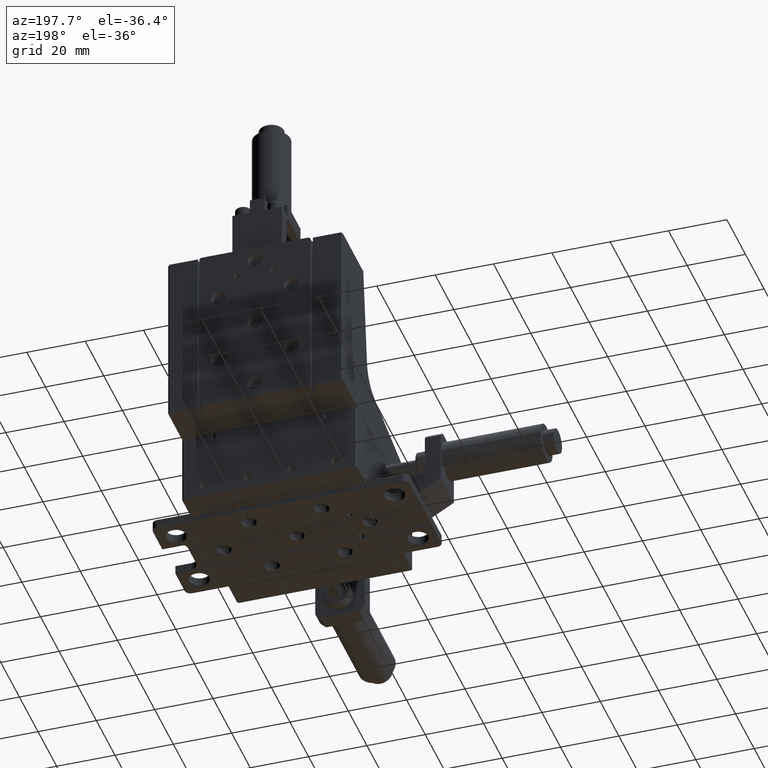
[diagram: clean part render]
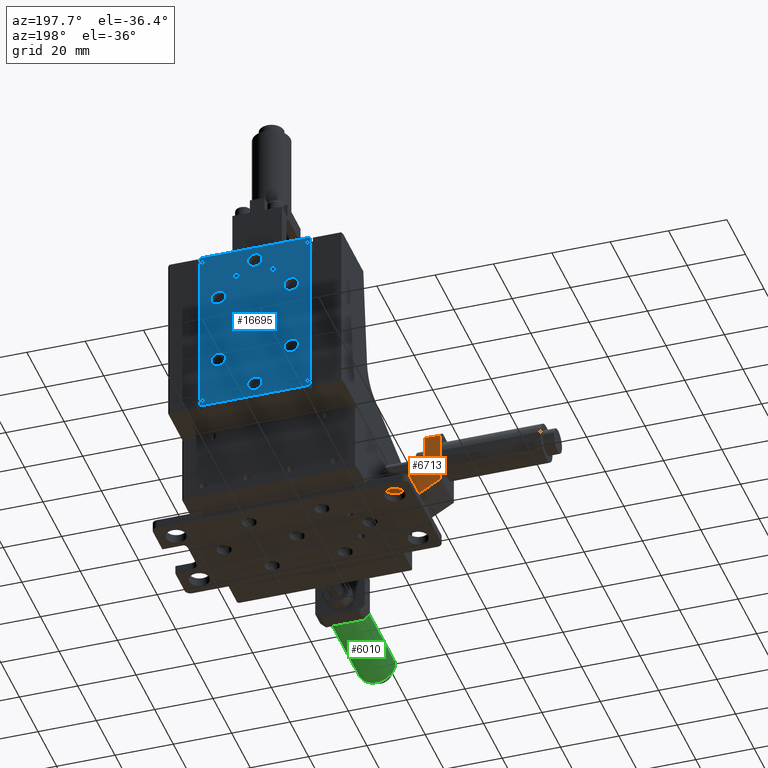
[diagram: same view with three faces highlighted in distinct colors, each labeled with its STEP entity id]
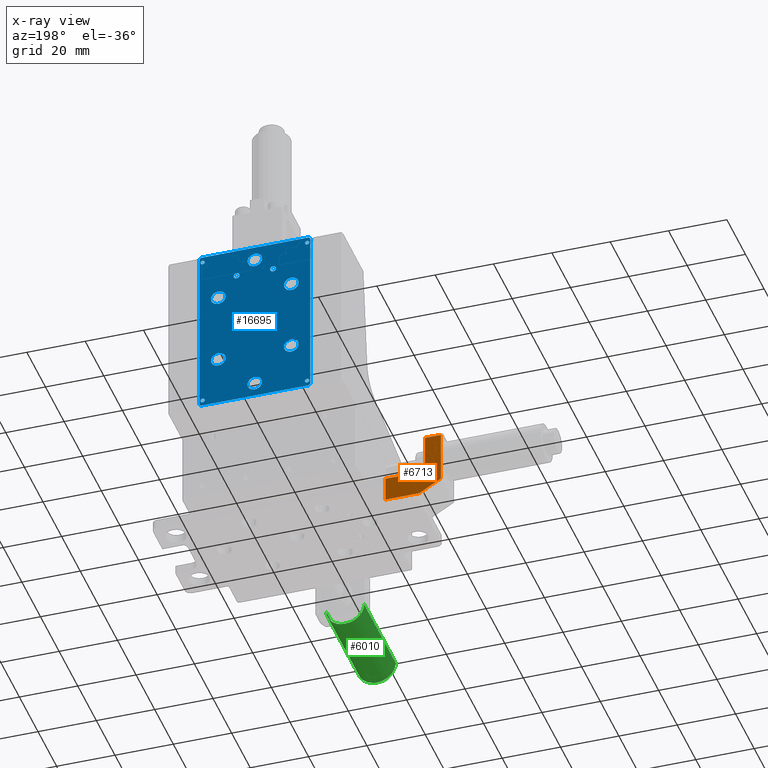
[diagram: x-ray of the same camera — body ghosted, the three highlighted faces saturated]
A machine part, auxiliary view with three faces highlighted in distinct colors.
The next image is the same camera in x-ray (body ghosted, the three faces saturated) — at least one of them is partly hidden behind the body in this view.
Their STEP definitions:

[orange] entity #6713 — the highlighted planar face has unit normal (0, -1, 0).
#38 = EDGE_LOOP ( 'NONE', ( #35945, #15120, #5681, #12062, #9176, #18007, #7366 ) ) ;
#511 = LINE ( 'NONE', #4927, #14455 ) ;
#2463 = LINE ( 'NONE', #17001, #9872 ) ;
#2578 = VERTEX_POINT ( 'NONE', #18215 ) ;
#4925 = VECTOR ( 'NONE', #14638, 1000.000000000000000 ) ;
#4927 = CARTESIAN_POINT ( 'NONE',  ( -63.20230440000000300, -61.38251310800000500, 14.03634959450000100 ) ) ;
#5125 = EDGE_CURVE ( 'NONE', #10601, #7354, #25595, .T. ) ;
#5681 = ORIENTED_EDGE ( 'NONE', *, *, #35690, .F. ) ;
#6713 = ADVANCED_FACE ( 'NONE', ( #32110 ), #34765, .F. ) ;
#7099 = VERTEX_POINT ( 'NONE', #22460 ) ;
#7354 = VERTEX_POINT ( 'NONE', #13020 ) ;
#7366 = ORIENTED_EDGE ( 'NONE', *, *, #27676, .T. ) ;
#7528 = CARTESIAN_POINT ( 'NONE',  ( -57.70230440000000300, -61.38251310800000500, 21.87128608500000500 ) ) ;
#8152 = VECTOR ( 'NONE', #15590, 1000.000000000000000 ) ;
#8428 = EDGE_CURVE ( 'NONE', #24506, #34978, #12341, .T. ) ;
#9176 = ORIENTED_EDGE ( 'NONE', *, *, #12542, .F. ) ;
#9872 = VECTOR ( 'NONE', #33591, 1000.000000000000000 ) ;
#9947 = DIRECTION ( 'NONE',  ( 0.0000000000000000000, -1.000000000000000000, 0.0000000000000000000 ) ) ;
#10601 = VERTEX_POINT ( 'NONE', #7528 ) ;
#10674 = DIRECTION ( 'NONE',  ( -0.0000000000000000000, -0.0000000000000000000, 1.000000000000000000 ) ) ;
#10907 = VECTOR ( 'NONE', #21947, 1000.000000000000000 ) ;
#11858 = CARTESIAN_POINT ( 'NONE',  ( -53.70230440000000300, -61.38251310800000500, -0.1287139150000000100 ) ) ;
#12062 = ORIENTED_EDGE ( 'NONE', *, *, #8428, .F. ) ;
#12341 = LINE ( 'NONE', #33658, #33547 ) ;
#12542 = EDGE_CURVE ( 'NONE', #26064, #24506, #34398, .T. ) ;
#13020 = CARTESIAN_POINT ( 'NONE',  ( -57.70230440100000600, -61.38251310800000500, 8.371286077000002400 ) ) ;
#13705 = CARTESIAN_POINT ( 'NONE',  ( -63.20230440000000300, -61.38251310800001200, 4.201413104000001100 ) ) ;
#14455 = VECTOR ( 'NONE', #10674, 1000.000000000000000 ) ;
#14638 = DIRECTION ( 'NONE',  ( 1.000000000000000000, 0.0000000000000000000, 0.0000000000000000000 ) ) ;
#15120 = ORIENTED_EDGE ( 'NONE', *, *, #5125, .T. ) ;
#15518 = LINE ( 'NONE', #34950, #8152 ) ;
#15536 = CARTESIAN_POINT ( 'NONE',  ( -44.20230440000000300, -61.38251310800000500, -0.1287139150000009800 ) ) ;
#15590 = DIRECTION ( 'NONE',  ( 1.000000000000000000, 0.0000000000000000000, 0.0000000000000000000 ) ) ;
#17001 = CARTESIAN_POINT ( 'NONE',  ( -53.70230440000000300, -61.38251310800000500, 8.371286077000002400 ) ) ;
#17070 = DIRECTION ( 'NONE',  ( 0.0000000000000000000, 0.0000000000000000000, 1.000000000000000000 ) ) ;
#18007 = ORIENTED_EDGE ( 'NONE', *, *, #21325, .F. ) ;
#18215 = CARTESIAN_POINT ( 'NONE',  ( -63.20230440000000300, -61.38251310799999800, 21.87128608665520700 ) ) ;
#18602 = EDGE_CURVE ( 'NONE', #2578, #10601, #15518, .T. ) ;
#19041 = CARTESIAN_POINT ( 'NONE',  ( -57.70230440000000300, -61.38251310800000500, 16.12128608500000100 ) ) ;
#19144 = CARTESIAN_POINT ( 'NONE',  ( -44.20230440000000300, -61.38251310800000500, 8.371286081000000900 ) ) ;
#20769 = AXIS2_PLACEMENT_3D ( 'NONE', #26534, #9947, #29316 ) ;
#21325 = EDGE_CURVE ( 'NONE', #7099, #26064, #28986, .T. ) ;
#21947 = DIRECTION ( 'NONE',  ( -0.0000000000000000000, -0.0000000000000000000, -1.000000000000000000 ) ) ;
#22460 = CARTESIAN_POINT ( 'NONE',  ( -63.20230440000000300, -61.38251310800001200, 4.201413104000000200 ) ) ;
#24506 = VERTEX_POINT ( 'NONE', #15536 ) ;
#25595 = LINE ( 'NONE', #19041, #10907 ) ;
#26064 = VERTEX_POINT ( 'NONE', #34788 ) ;
#26534 = CARTESIAN_POINT ( 'NONE',  ( -63.20230440000000300, -61.38251310800000500, -0.1287139150000000100 ) ) ;
#27676 = EDGE_CURVE ( 'NONE', #7099, #2578, #511, .T. ) ;
#28986 = LINE ( 'NONE', #13705, #35495 ) ;
#29316 = DIRECTION ( 'NONE',  ( 1.000000000000000000, 0.0000000000000000000, 0.0000000000000000000 ) ) ;
#32110 = FACE_OUTER_BOUND ( 'NONE', #38, .T. ) ;
#33058 = DIRECTION ( 'NONE',  ( 0.8660254037805482600, 0.0000000000000000000, -0.5000000000067385000 ) ) ;
#33547 = VECTOR ( 'NONE', #17070, 1000.000000000000000 ) ;
#33591 = DIRECTION ( 'NONE',  ( -1.000000000000000000, -0.0000000000000000000, -0.0000000000000000000 ) ) ;
#33658 = CARTESIAN_POINT ( 'NONE',  ( -44.20230440000000300, -61.38251310800000500, 10.87128608500000100 ) ) ;
#34398 = LINE ( 'NONE', #11858, #4925 ) ;
#34765 = PLANE ( 'NONE',  #20769 ) ;
#34788 = CARTESIAN_POINT ( 'NONE',  ( -55.70230440000001700, -61.38251310800001200, -0.1287139149999991800 ) ) ;
#34950 = CARTESIAN_POINT ( 'NONE',  ( -60.45230440000000300, -61.38251310800000500, 21.87128608500000100 ) ) ;
#34978 = VERTEX_POINT ( 'NONE', #19144 ) ;
#35495 = VECTOR ( 'NONE', #33058, 1000.000000000000100 ) ;
#35690 = EDGE_CURVE ( 'NONE', #34978, #7354, #2463, .T. ) ;
#35945 = ORIENTED_EDGE ( 'NONE', *, *, #18602, .T. ) ;

[blue] entity #16695 — the highlighted planar face has unit normal (0, 1, 0).
#102 = DIRECTION ( 'NONE',  ( -1.000000000000000000, 0.0000000000000000000, 0.0000000000000000000 ) ) ;
#352 = DIRECTION ( 'NONE',  ( -1.000000000000000000, 0.0000000000000000000, 0.0000000000000000000 ) ) ;
#587 = DIRECTION ( 'NONE',  ( -1.000000000000000000, 0.0000000000000000000, 0.0000000000000000000 ) ) ;
#635 = ORIENTED_EDGE ( 'NONE', *, *, #4079, .T. ) ;
#636 = VERTEX_POINT ( 'NONE', #7115 ) ;
#665 = CARTESIAN_POINT ( 'NONE',  ( 6.197695599999994100, -22.88251310799999800, 24.37128608500000100 ) ) ;
#983 = CIRCLE ( 'NONE', #22921, 0.7500000000000006700 ) ;
#993 = CARTESIAN_POINT ( 'NONE',  ( -17.95230439999999900, -22.88251310799999800, 72.37128608500000800 ) ) ;
#1023 = AXIS2_PLACEMENT_3D ( 'NONE', #33795, #17213, #587 ) ;
#1150 = AXIS2_PLACEMENT_3D ( 'NONE', #34521, #17990, #1319 ) ;
#1245 = VECTOR ( 'NONE', #1707, 1000.000000000000100 ) ;
#1319 = DIRECTION ( 'NONE',  ( -1.000000000000000000, 0.0000000000000000000, 0.0000000000000000000 ) ) ;
#1325 = DIRECTION ( 'NONE',  ( -1.000000000000000000, 0.0000000000000000000, 0.0000000000000000000 ) ) ;
#1707 = DIRECTION ( 'NONE',  ( -0.7071067811865451300, 0.0000000000000000000, 0.7071067811865500200 ) ) ;
#1806 = FACE_OUTER_BOUND ( 'NONE', #22220, .T. ) ;
#1969 = LINE ( 'NONE', #21453, #8498 ) ;
#2142 = CARTESIAN_POINT ( 'NONE',  ( 7.047695600000000800, -22.88251310799999800, 82.12128608500000800 ) ) ;
#2199 = CIRCLE ( 'NONE', #19658, 0.7500000000000006700 ) ;
#2207 = ORIENTED_EDGE ( 'NONE', *, *, #7438, .T. ) ;
#2215 = VECTOR ( 'NONE', #31932, 1000.000000000000000 ) ;
#2216 = AXIS2_PLACEMENT_3D ( 'NONE', #25015, #8434, #27788 ) ;
#2374 = PLANE ( 'NONE',  #19196 ) ;
#2446 = EDGE_LOOP ( 'NONE', ( #12159, #25652 ) ) ;
#2686 = FACE_BOUND ( 'NONE', #3585, .T. ) ;
#2737 = CARTESIAN_POINT ( 'NONE',  ( -26.70230440000000300, -22.88251310799999800, 39.87128608499998700 ) ) ;
#2858 = AXIS2_PLACEMENT_3D ( 'NONE', #13222, #32601, #15977 ) ;
#2938 = AXIS2_PLACEMENT_3D ( 'NONE', #23314, #6712, #26085 ) ;
#3049 = ORIENTED_EDGE ( 'NONE', *, *, #32402, .T. ) ;
#3089 = CARTESIAN_POINT ( 'NONE',  ( -11.70230440000000100, -22.88251310799999800, 27.37128608500000100 ) ) ;
#3311 = VERTEX_POINT ( 'NONE', #19727 ) ;
#3480 = DIRECTION ( 'NONE',  ( -1.000000000000000000, 0.0000000000000000000, 0.0000000000000000000 ) ) ;
#3585 = EDGE_LOOP ( 'NONE', ( #24442, #12973 ) ) ;
#3596 = FACE_BOUND ( 'NONE', #29648, .T. ) ;
#3691 = LINE ( 'NONE', #10830, #32330 ) ;
#3709 = EDGE_CURVE ( 'NONE', #34390, #7021, #13670, .T. ) ;
#3823 = DIRECTION ( 'NONE',  ( 0.0000000000000000000, 0.0000000000000000000, -1.000000000000000000 ) ) ;
#3901 = VERTEX_POINT ( 'NONE', #4678 ) ;
#4012 = CIRCLE ( 'NONE', #10706, 2.500000000000002200 ) ;
#4079 = EDGE_CURVE ( 'NONE', #5090, #27425, #11881, .T. ) ;
#4244 = EDGE_CURVE ( 'NONE', #20859, #25643, #4012, .T. ) ;
#4249 = DIRECTION ( 'NONE',  ( 6.938893903907221500E-016, -1.000000000000000000, -0.0000000000000000000 ) ) ;
#4678 = CARTESIAN_POINT ( 'NONE',  ( -5.452304400000000100, -22.88251310799999800, 71.34628608500001700 ) ) ;
#5090 = VERTEX_POINT ( 'NONE', #7755 ) ;
#5277 = DIRECTION ( 'NONE',  ( 0.0000000000000000000, 1.000000000000000000, 0.0000000000000000000 ) ) ;
#5295 = FACE_BOUND ( 'NONE', #26986, .T. ) ;
#5320 = DIRECTION ( 'NONE',  ( 6.938893903907222500E-016, -1.000000000000000000, -0.0000000000000000000 ) ) ;
#5562 = AXIS2_PLACEMENT_3D ( 'NONE', #34525, #17998, #1325 ) ;
#5563 = CARTESIAN_POINT ( 'NONE',  ( 0.7976955999999983900, -22.88251310799999800, 39.87128608499998700 ) ) ;
#5716 = CARTESIAN_POINT ( 'NONE',  ( 6.947695599999994100, -22.88251310799999800, 80.37128608500000800 ) ) ;
#5736 = EDGE_LOOP ( 'NONE', ( #2207, #24325 ) ) ;
#5860 = DIRECTION ( 'NONE',  ( -1.000000000000000000, 0.0000000000000000000, 0.0000000000000000000 ) ) ;
#5862 = AXIS2_PLACEMENT_3D ( 'NONE', #20876, #4249, #23641 ) ;
#5863 = CARTESIAN_POINT ( 'NONE',  ( -29.60230440000000800, -22.88251310799999800, 80.37128608500000800 ) ) ;
#6333 = CIRCLE ( 'NONE', #22000, 0.7500000000000006700 ) ;
#6615 = LINE ( 'NONE', #10016, #20518 ) ;
#6693 = EDGE_CURVE ( 'NONE', #17311, #18894, #27122, .T. ) ;
#6712 = DIRECTION ( 'NONE',  ( -2.312964634635740700E-015, 1.000000000000000000, 0.0000000000000000000 ) ) ;
#6937 = ORIENTED_EDGE ( 'NONE', *, *, #16515, .T. ) ;
#7021 = VERTEX_POINT ( 'NONE', #5716 ) ;
#7115 = CARTESIAN_POINT ( 'NONE',  ( -17.95230439999999900, -22.88251310799999800, 73.39628608500001400 ) ) ;
#7240 = DIRECTION ( 'NONE',  ( 0.7071067811865451300, 0.0000000000000000000, 0.7071067811865500200 ) ) ;
#7438 = EDGE_CURVE ( 'NONE', #11333, #26262, #30242, .T. ) ;
#7490 = EDGE_CURVE ( 'NONE', #33479, #34594, #19421, .T. ) ;
#7755 = CARTESIAN_POINT ( 'NONE',  ( -14.20230439999999900, -22.88251310799999800, 27.37128608500000100 ) ) ;
#7847 = EDGE_CURVE ( 'NONE', #3901, #19931, #9819, .T. ) ;
#7868 = CARTESIAN_POINT ( 'NONE',  ( -30.70230439999999900, -22.88251310799999800, 81.87128609000001200 ) ) ;
#8028 = AXIS2_PLACEMENT_3D ( 'NONE', #993, #20421, #3823 ) ;
#8050 = VERTEX_POINT ( 'NONE', #2737 ) ;
#8100 = CARTESIAN_POINT ( 'NONE',  ( -17.95230439999999900, -22.88251310799999800, 71.34628608500001700 ) ) ;
#8192 = EDGE_CURVE ( 'NONE', #26614, #11641, #23197, .T. ) ;
#8351 = EDGE_CURVE ( 'NONE', #32627, #30571, #26632, .T. ) ;
#8390 = DIRECTION ( 'NONE',  ( -1.000000000000000000, 0.0000000000000000000, 0.0000000000000000000 ) ) ;
#8413 = AXIS2_PLACEMENT_3D ( 'NONE', #30521, #13949, #33286 ) ;
#8434 = DIRECTION ( 'NONE',  ( 6.938893903907222500E-016, -1.000000000000000000, -0.0000000000000000000 ) ) ;
#8498 = VECTOR ( 'NONE', #32369, 1000.000000000000000 ) ;
#8675 = DIRECTION ( 'NONE',  ( -1.000000000000000000, 0.0000000000000000000, 0.0000000000000000000 ) ) ;
#8774 = CARTESIAN_POINT ( 'NONE',  ( 7.297695599999999900, -22.88251310799999800, 22.87128608000000100 ) ) ;
#9060 = EDGE_CURVE ( 'NONE', #24479, #30750, #983, .T. ) ;
#9193 = EDGE_CURVE ( 'NONE', #18950, #12892, #27423, .T. ) ;
#9199 = EDGE_LOOP ( 'NONE', ( #13409, #25862 ) ) ;
#9209 = FACE_BOUND ( 'NONE', #9199, .T. ) ;
#9373 = VERTEX_POINT ( 'NONE', #12918 ) ;
#9819 = CIRCLE ( 'NONE', #25184, 1.024999999999998100 ) ;
#9951 = CARTESIAN_POINT ( 'NONE',  ( 5.447695599999993200, -22.88251310799999800, 80.37128608500000800 ) ) ;
#10016 = CARTESIAN_POINT ( 'NONE',  ( -30.45230439999999900, -22.88251310799999800, 82.12128608500000800 ) ) ;
#10102 = FACE_BOUND ( 'NONE', #21814, .T. ) ;
#10162 = EDGE_LOOP ( 'NONE', ( #26676, #16030 ) ) ;
#10226 = DIRECTION ( 'NONE',  ( 2.312964634635740700E-015, -1.000000000000000000, -0.0000000000000000000 ) ) ;
#10706 = AXIS2_PLACEMENT_3D ( 'NONE', #13006, #32395, #15776 ) ;
#10756 = ORIENTED_EDGE ( 'NONE', *, *, #28738, .T. ) ;
#10830 = CARTESIAN_POINT ( 'NONE',  ( 7.047695600000000800, -22.88251310799999800, 22.62128608500000100 ) ) ;
#11003 = FACE_BOUND ( 'NONE', #27847, .T. ) ;
#11319 = CARTESIAN_POINT ( 'NONE',  ( 6.797695599999999100, -22.88251310799999800, 82.37128608500002300 ) ) ;
#11333 = VERTEX_POINT ( 'NONE', #19601 ) ;
#11446 = CIRCLE ( 'NONE', #18600, 2.500000000000002200 ) ;
#11641 = VERTEX_POINT ( 'NONE', #32200 ) ;
#11881 = CIRCLE ( 'NONE', #22400, 2.499999999999998700 ) ;
#12002 = CARTESIAN_POINT ( 'NONE',  ( -11.70230439999999900, -22.88251310799999800, 82.37128608500000800 ) ) ;
#12119 = ORIENTED_EDGE ( 'NONE', *, *, #21047, .T. ) ;
#12159 = ORIENTED_EDGE ( 'NONE', *, *, #26682, .T. ) ;
#12225 = VERTEX_POINT ( 'NONE', #21323 ) ;
#12500 = CIRCLE ( 'NONE', #25533, 1.024999999999998100 ) ;
#12507 = DIRECTION ( 'NONE',  ( 2.312964634635740700E-015, -1.000000000000000000, -0.0000000000000000000 ) ) ;
#12854 = DIRECTION ( 'NONE',  ( 2.312964634635740700E-015, -1.000000000000000000, -0.0000000000000000000 ) ) ;
#12892 = VERTEX_POINT ( 'NONE', #30084 ) ;
#12918 = CARTESIAN_POINT ( 'NONE',  ( -30.70230439999999900, -22.88251310799999800, 22.87128608000000100 ) ) ;
#12945 = CIRCLE ( 'NONE', #25770, 2.500000000000002200 ) ;
#12971 = VERTEX_POINT ( 'NONE', #16730 ) ;
#12973 = ORIENTED_EDGE ( 'NONE', *, *, #32058, .T. ) ;
#12991 = EDGE_CURVE ( 'NONE', #34594, #33479, #11446, .T. ) ;
#13006 = CARTESIAN_POINT ( 'NONE',  ( 0.7976955999999983900, -22.88251310799999800, 64.87128608500000800 ) ) ;
#13025 = VERTEX_POINT ( 'NONE', #33937 ) ;
#13145 = CARTESIAN_POINT ( 'NONE',  ( -21.70230439999999600, -22.88251310799999800, 39.87128608499998700 ) ) ;
#13220 = DIRECTION ( 'NONE',  ( 0.0000000000000000000, -1.000000000000000000, 0.0000000000000000000 ) ) ;
#13222 = CARTESIAN_POINT ( 'NONE',  ( 6.197695599999994100, -22.88251310799999800, 80.37128608500000800 ) ) ;
#13251 = VERTEX_POINT ( 'NONE', #13145 ) ;
#13271 = CARTESIAN_POINT ( 'NONE',  ( -30.20230440249999800, -22.88251310799999800, 82.37128608500002300 ) ) ;
#13356 = EDGE_CURVE ( 'NONE', #12971, #3311, #12945, .T. ) ;
#13409 = ORIENTED_EDGE ( 'NONE', *, *, #9193, .F. ) ;
#13670 = CIRCLE ( 'NONE', #17036, 0.7500000000000006700 ) ;
#13768 = EDGE_CURVE ( 'NONE', #636, #31474, #23240, .T. ) ;
#13784 = EDGE_CURVE ( 'NONE', #30571, #15816, #1969, .T. ) ;
#13949 = DIRECTION ( 'NONE',  ( 6.938893903907221500E-016, -1.000000000000000000, -0.0000000000000000000 ) ) ;
#14089 = CIRCLE ( 'NONE', #5562, 2.500000000000002200 ) ;
#14111 = ORIENTED_EDGE ( 'NONE', *, *, #6693, .T. ) ;
#14130 = DIRECTION ( 'NONE',  ( 0.0000000000000000000, -1.000000000000000000, 0.0000000000000000000 ) ) ;
#14914 = CARTESIAN_POINT ( 'NONE',  ( 6.197695599999994100, -22.88251310799999800, 80.37128608500000800 ) ) ;
#15397 = CARTESIAN_POINT ( 'NONE',  ( -24.20230439999999900, -22.88251310799999800, 39.87128608499998700 ) ) ;
#15412 = CARTESIAN_POINT ( 'NONE',  ( -28.85230440000000800, -22.88251310799999800, 80.37128608500000800 ) ) ;
#15482 = CIRCLE ( 'NONE', #8028, 1.024999999999998100 ) ;
#15627 = CARTESIAN_POINT ( 'NONE',  ( -5.452304400000000100, -22.88251310799999800, 72.37128608500000800 ) ) ;
#15776 = DIRECTION ( 'NONE',  ( -1.000000000000000000, 0.0000000000000000000, 0.0000000000000000000 ) ) ;
#15816 = VERTEX_POINT ( 'NONE', #8774 ) ;
#15943 = CARTESIAN_POINT ( 'NONE',  ( 3.297695600000000800, -22.88251310799999800, 64.87128608500000800 ) ) ;
#15977 = DIRECTION ( 'NONE',  ( -1.000000000000000000, 0.0000000000000000000, 0.0000000000000000000 ) ) ;
#16030 = ORIENTED_EDGE ( 'NONE', *, *, #29405, .T. ) ;
#16054 = CIRCLE ( 'NONE', #1023, 2.499999999999998700 ) ;
#16236 = EDGE_CURVE ( 'NONE', #15816, #13025, #3691, .T. ) ;
#16365 = DIRECTION ( 'NONE',  ( 6.938893903907221500E-016, -1.000000000000000000, -0.0000000000000000000 ) ) ;
#16515 = EDGE_CURVE ( 'NONE', #13251, #8050, #24864, .T. ) ;
#16553 = EDGE_LOOP ( 'NONE', ( #33836, #31440 ) ) ;
#16567 = FACE_BOUND ( 'NONE', #16553, .T. ) ;
#16695 = ADVANCED_FACE ( 'NONE', ( #18373, #11003, #3596, #32230, #24827, #5295, #17466, #10102, #2686, #31334, #23964, #16567, #9209, #1806 ), #2374, .T. ) ;
#16713 = DIRECTION ( 'NONE',  ( 6.938893903907221500E-016, -1.000000000000000000, -0.0000000000000000000 ) ) ;
#16730 = CARTESIAN_POINT ( 'NONE',  ( -14.20230440000000300, -22.88251310799999800, 52.37128608499998700 ) ) ;
#16835 = VECTOR ( 'NONE', #34110, 1000.000000000000000 ) ;
#16841 = CARTESIAN_POINT ( 'NONE',  ( 7.297695599999999900, -22.88251310799999800, 81.87128609000001200 ) ) ;
#16907 = EDGE_CURVE ( 'NONE', #30750, #24479, #2199, .T. ) ;
#16982 = LINE ( 'NONE', #29116, #2215 ) ;
#16989 = DIRECTION ( 'NONE',  ( 6.938893903907221500E-016, -1.000000000000000000, -0.0000000000000000000 ) ) ;
#17036 = AXIS2_PLACEMENT_3D ( 'NONE', #14914, #34234, #17677 ) ;
#17116 = ORIENTED_EDGE ( 'NONE', *, *, #13784, .T. ) ;
#17213 = DIRECTION ( 'NONE',  ( 6.938893903907231300E-016, -1.000000000000000000, -0.0000000000000000000 ) ) ;
#17289 = AXIS2_PLACEMENT_3D ( 'NONE', #5563, #24966, #8390 ) ;
#17311 = VERTEX_POINT ( 'NONE', #33848 ) ;
#17466 = FACE_BOUND ( 'NONE', #23540, .T. ) ;
#17599 = EDGE_CURVE ( 'NONE', #12225, #9373, #23401, .T. ) ;
#17677 = DIRECTION ( 'NONE',  ( -1.000000000000000000, 0.0000000000000000000, 0.0000000000000000000 ) ) ;
#17735 = LINE ( 'NONE', #12002, #16835 ) ;
#17846 = EDGE_LOOP ( 'NONE', ( #24036, #28815 ) ) ;
#17919 = AXIS2_PLACEMENT_3D ( 'NONE', #33313, #16713, #102 ) ;
#17990 = DIRECTION ( 'NONE',  ( 6.938893903907221500E-016, -1.000000000000000000, -0.0000000000000000000 ) ) ;
#17992 = ORIENTED_EDGE ( 'NONE', *, *, #8351, .T. ) ;
#17998 = DIRECTION ( 'NONE',  ( 6.938893903907221500E-016, -1.000000000000000000, -0.0000000000000000000 ) ) ;
#18196 = DIRECTION ( 'NONE',  ( -1.000000000000000000, 0.0000000000000000000, 0.0000000000000000000 ) ) ;
#18373 = FACE_BOUND ( 'NONE', #2446, .T. ) ;
#18456 = DIRECTION ( 'NONE',  ( 0.0000000000000000000, 0.0000000000000000000, -1.000000000000000000 ) ) ;
#18600 = AXIS2_PLACEMENT_3D ( 'NONE', #33582, #16989, #352 ) ;
#18800 = DIRECTION ( 'NONE',  ( 0.7071067811865469100, 0.0000000000000000000, -0.7071067811865482400 ) ) ;
#18894 = VERTEX_POINT ( 'NONE', #22479 ) ;
#18950 = VERTEX_POINT ( 'NONE', #28515 ) ;
#19120 = ORIENTED_EDGE ( 'NONE', *, *, #16236, .T. ) ;
#19196 = AXIS2_PLACEMENT_3D ( 'NONE', #21930, #5277, #24681 ) ;
#19392 = EDGE_CURVE ( 'NONE', #26262, #11333, #28771, .T. ) ;
#19421 = CIRCLE ( 'NONE', #17289, 2.500000000000002200 ) ;
#19506 = CARTESIAN_POINT ( 'NONE',  ( -1.702304400000003800, -22.88251310799999800, 39.87128608499998700 ) ) ;
#19601 = CARTESIAN_POINT ( 'NONE',  ( -14.20230440000000300, -22.88251310799999800, 77.37128608500000800 ) ) ;
#19658 = AXIS2_PLACEMENT_3D ( 'NONE', #29400, #12854, #32234 ) ;
#19727 = CARTESIAN_POINT ( 'NONE',  ( -9.202304399999997400, -22.88251310799999800, 52.37128608499998700 ) ) ;
#19766 = EDGE_CURVE ( 'NONE', #7021, #34390, #24839, .T. ) ;
#19931 = VERTEX_POINT ( 'NONE', #24927 ) ;
#20104 = DIRECTION ( 'NONE',  ( -2.312964634635740700E-015, 1.000000000000000000, 0.0000000000000000000 ) ) ;
#20421 = DIRECTION ( 'NONE',  ( 0.0000000000000000000, -1.000000000000000000, 0.0000000000000000000 ) ) ;
#20518 = VECTOR ( 'NONE', #7240, 1000.000000000000100 ) ;
#20680 = EDGE_CURVE ( 'NONE', #9373, #29277, #16982, .T. ) ;
#20759 = ORIENTED_EDGE ( 'NONE', *, *, #25302, .T. ) ;
#20859 = VERTEX_POINT ( 'NONE', #32764 ) ;
#20865 = VERTEX_POINT ( 'NONE', #13271 ) ;
#20876 = CARTESIAN_POINT ( 'NONE',  ( -24.20230439999999900, -22.88251310799999800, 64.87128608500000800 ) ) ;
#21047 = EDGE_CURVE ( 'NONE', #27425, #5090, #16054, .T. ) ;
#21055 = CIRCLE ( 'NONE', #23419, 0.7500000000000006700 ) ;
#21323 = CARTESIAN_POINT ( 'NONE',  ( -30.20230440249999800, -22.88251310799999800, 22.37128608500000100 ) ) ;
#21453 = CARTESIAN_POINT ( 'NONE',  ( 7.297695599999999900, -22.88251310799999800, 52.37128608500000100 ) ) ;
#21777 = LINE ( 'NONE', #26777, #29996 ) ;
#21782 = ORIENTED_EDGE ( 'NONE', *, *, #20680, .T. ) ;
#21814 = EDGE_LOOP ( 'NONE', ( #24304, #26890 ) ) ;
#21859 = CARTESIAN_POINT ( 'NONE',  ( -9.202304399999997400, -22.88251310799999800, 77.37128608500000800 ) ) ;
#21930 = CARTESIAN_POINT ( 'NONE',  ( -30.70230439999999900, -22.88251310799999800, 22.37128608500000100 ) ) ;
#21961 = CARTESIAN_POINT ( 'NONE',  ( -11.70230440000000100, -22.88251310799999800, 52.37128608499998700 ) ) ;
#22000 = AXIS2_PLACEMENT_3D ( 'NONE', #26805, #10226, #29602 ) ;
#22220 = EDGE_LOOP ( 'NONE', ( #30313, #26029, #21782, #26589, #20759, #17992, #17116, #19120 ) ) ;
#22222 = CIRCLE ( 'NONE', #1150, 2.500000000000002200 ) ;
#22297 = ORIENTED_EDGE ( 'NONE', *, *, #35660, .T. ) ;
#22400 = AXIS2_PLACEMENT_3D ( 'NONE', #3089, #22482, #5860 ) ;
#22479 = CARTESIAN_POINT ( 'NONE',  ( -26.70230440000000300, -22.88251310799999800, 64.87128608500000800 ) ) ;
#22482 = DIRECTION ( 'NONE',  ( 6.938893903907231300E-016, -1.000000000000000000, -0.0000000000000000000 ) ) ;
#22921 = AXIS2_PLACEMENT_3D ( 'NONE', #5863, #25255, #8675 ) ;
#23197 = CIRCLE ( 'NONE', #31246, 0.7500000000000006700 ) ;
#23240 = CIRCLE ( 'NONE', #25372, 1.024999999999998100 ) ;
#23314 = CARTESIAN_POINT ( 'NONE',  ( 6.197695599999994100, -22.88251310799999800, 24.37128608500000100 ) ) ;
#23401 = LINE ( 'NONE', #34917, #1245 ) ;
#23419 = AXIS2_PLACEMENT_3D ( 'NONE', #665, #20104, #3480 ) ;
#23540 = EDGE_LOOP ( 'NONE', ( #10756, #6937 ) ) ;
#23641 = DIRECTION ( 'NONE',  ( -1.000000000000000000, 0.0000000000000000000, 0.0000000000000000000 ) ) ;
#23766 = DIRECTION ( 'NONE',  ( -1.000000000000000000, -0.0000000000000000000, -0.0000000000000000000 ) ) ;
#23795 = EDGE_LOOP ( 'NONE', ( #3049, #32162 ) ) ;
#23930 = EDGE_CURVE ( 'NONE', #29277, #20865, #6615, .T. ) ;
#23964 = FACE_BOUND ( 'NONE', #23795, .T. ) ;
#24036 = ORIENTED_EDGE ( 'NONE', *, *, #9060, .T. ) ;
#24304 = ORIENTED_EDGE ( 'NONE', *, *, #12991, .T. ) ;
#24325 = ORIENTED_EDGE ( 'NONE', *, *, #19392, .T. ) ;
#24442 = ORIENTED_EDGE ( 'NONE', *, *, #13356, .T. ) ;
#24479 = VERTEX_POINT ( 'NONE', #31917 ) ;
#24681 = DIRECTION ( 'NONE',  ( 0.0000000000000000000, 0.0000000000000000000, 1.000000000000000000 ) ) ;
#24728 = DIRECTION ( 'NONE',  ( -1.000000000000000000, 0.0000000000000000000, 0.0000000000000000000 ) ) ;
#24827 = FACE_BOUND ( 'NONE', #5736, .T. ) ;
#24839 = CIRCLE ( 'NONE', #2858, 0.7500000000000006700 ) ;
#24864 = CIRCLE ( 'NONE', #26100, 2.500000000000002200 ) ;
#24927 = CARTESIAN_POINT ( 'NONE',  ( -5.452304400000000100, -22.88251310799999800, 73.39628608500001400 ) ) ;
#24966 = DIRECTION ( 'NONE',  ( 6.938893903907221500E-016, -1.000000000000000000, -0.0000000000000000000 ) ) ;
#25015 = CARTESIAN_POINT ( 'NONE',  ( -11.70230440000000100, -22.88251310799999800, 52.37128608499998700 ) ) ;
#25184 = AXIS2_PLACEMENT_3D ( 'NONE', #15627, #34977, #18456 ) ;
#25255 = DIRECTION ( 'NONE',  ( 2.312964634635740700E-015, -1.000000000000000000, -0.0000000000000000000 ) ) ;
#25302 = EDGE_CURVE ( 'NONE', #20865, #32627, #17735, .T. ) ;
#25372 = AXIS2_PLACEMENT_3D ( 'NONE', #29800, #13220, #32600 ) ;
#25533 = AXIS2_PLACEMENT_3D ( 'NONE', #30699, #14130, #33475 ) ;
#25544 = CARTESIAN_POINT ( 'NONE',  ( -9.202304400000000900, -22.88251310799999800, 27.37128608500000100 ) ) ;
#25643 = VERTEX_POINT ( 'NONE', #15943 ) ;
#25652 = ORIENTED_EDGE ( 'NONE', *, *, #13768, .T. ) ;
#25770 = AXIS2_PLACEMENT_3D ( 'NONE', #21961, #5320, #24728 ) ;
#25862 = ORIENTED_EDGE ( 'NONE', *, *, #33268, .F. ) ;
#26029 = ORIENTED_EDGE ( 'NONE', *, *, #17599, .T. ) ;
#26085 = DIRECTION ( 'NONE',  ( -1.000000000000000000, 0.0000000000000000000, 0.0000000000000000000 ) ) ;
#26100 = AXIS2_PLACEMENT_3D ( 'NONE', #15397, #34743, #18196 ) ;
#26262 = VERTEX_POINT ( 'NONE', #21859 ) ;
#26589 = ORIENTED_EDGE ( 'NONE', *, *, #23930, .T. ) ;
#26614 = VERTEX_POINT ( 'NONE', #28529 ) ;
#26632 = LINE ( 'NONE', #2142, #33997 ) ;
#26676 = ORIENTED_EDGE ( 'NONE', *, *, #4244, .T. ) ;
#26682 = EDGE_CURVE ( 'NONE', #31474, #636, #15482, .T. ) ;
#26777 = CARTESIAN_POINT ( 'NONE',  ( -11.70230439999999900, -22.88251310799999800, 22.37128608500000100 ) ) ;
#26805 = CARTESIAN_POINT ( 'NONE',  ( -29.60230440000000800, -22.88251310799999800, 24.37128608500000100 ) ) ;
#26890 = ORIENTED_EDGE ( 'NONE', *, *, #7490, .T. ) ;
#26986 = EDGE_LOOP ( 'NONE', ( #635, #12119 ) ) ;
#27122 = CIRCLE ( 'NONE', #5862, 2.500000000000002200 ) ;
#27425 = VERTEX_POINT ( 'NONE', #25544 ) ;
#27423 = CIRCLE ( 'NONE', #2938, 0.7500000000000006700 ) ;
#27788 = DIRECTION ( 'NONE',  ( -1.000000000000000000, 0.0000000000000000000, 0.0000000000000000000 ) ) ;
#27809 = CIRCLE ( 'NONE', #8413, 2.500000000000002200 ) ;
#27847 = EDGE_LOOP ( 'NONE', ( #32996, #22297 ) ) ;
#28515 = CARTESIAN_POINT ( 'NONE',  ( 5.447695599999993200, -22.88251310799999800, 24.37128608500000100 ) ) ;
#28529 = CARTESIAN_POINT ( 'NONE',  ( -28.85230440000000800, -22.88251310799999800, 24.37128608500000100 ) ) ;
#28738 = EDGE_CURVE ( 'NONE', #8050, #13251, #14089, .T. ) ;
#28771 = CIRCLE ( 'NONE', #17919, 2.500000000000002200 ) ;
#28815 = ORIENTED_EDGE ( 'NONE', *, *, #16907, .T. ) ;
#29073 = CARTESIAN_POINT ( 'NONE',  ( -29.60230440000000800, -22.88251310799999800, 24.37128608500000100 ) ) ;
#29116 = CARTESIAN_POINT ( 'NONE',  ( -30.70230439999999900, -22.88251310799999800, 52.37128608500000100 ) ) ;
#29277 = VERTEX_POINT ( 'NONE', #7868 ) ;
#29400 = CARTESIAN_POINT ( 'NONE',  ( -29.60230440000000800, -22.88251310799999800, 80.37128608500000800 ) ) ;
#29405 = EDGE_CURVE ( 'NONE', #25643, #20859, #27809, .T. ) ;
#29602 = DIRECTION ( 'NONE',  ( -1.000000000000000000, 0.0000000000000000000, 0.0000000000000000000 ) ) ;
#29648 = EDGE_LOOP ( 'NONE', ( #32048, #14111 ) ) ;
#29800 = CARTESIAN_POINT ( 'NONE',  ( -17.95230439999999900, -22.88251310799999800, 72.37128608500000800 ) ) ;
#29996 = VECTOR ( 'NONE', #23766, 1000.000000000000000 ) ;
#30084 = CARTESIAN_POINT ( 'NONE',  ( 6.947695599999994100, -22.88251310799999800, 24.37128608500000100 ) ) ;
#30174 = DIRECTION ( 'NONE',  ( -0.7071067811865469100, 0.0000000000000000000, -0.7071067811865482400 ) ) ;
#30242 = CIRCLE ( 'NONE', #34682, 2.500000000000002200 ) ;
#30313 = ORIENTED_EDGE ( 'NONE', *, *, #34418, .T. ) ;
#30521 = CARTESIAN_POINT ( 'NONE',  ( 0.7976955999999983900, -22.88251310799999800, 64.87128608500000800 ) ) ;
#30571 = VERTEX_POINT ( 'NONE', #16841 ) ;
#30699 = CARTESIAN_POINT ( 'NONE',  ( -5.452304400000000100, -22.88251310799999800, 72.37128608500000800 ) ) ;
#30750 = VERTEX_POINT ( 'NONE', #15412 ) ;
#31246 = AXIS2_PLACEMENT_3D ( 'NONE', #29073, #12507, #31895 ) ;
#31334 = FACE_BOUND ( 'NONE', #17846, .T. ) ;
#31440 = ORIENTED_EDGE ( 'NONE', *, *, #19766, .T. ) ;
#31474 = VERTEX_POINT ( 'NONE', #8100 ) ;
#31895 = DIRECTION ( 'NONE',  ( -1.000000000000000000, 0.0000000000000000000, 0.0000000000000000000 ) ) ;
#31917 = CARTESIAN_POINT ( 'NONE',  ( -30.35230440000000800, -22.88251310799999800, 80.37128608500000800 ) ) ;
#31932 = DIRECTION ( 'NONE',  ( 0.0000000000000000000, 0.0000000000000000000, 1.000000000000000000 ) ) ;
#32048 = ORIENTED_EDGE ( 'NONE', *, *, #34273, .T. ) ;
#32058 = EDGE_CURVE ( 'NONE', #3311, #12971, #35300, .T. ) ;
#32162 = ORIENTED_EDGE ( 'NONE', *, *, #8192, .T. ) ;
#32200 = CARTESIAN_POINT ( 'NONE',  ( -30.35230440000000800, -22.88251310799999800, 24.37128608500000100 ) ) ;
#32230 = FACE_BOUND ( 'NONE', #10162, .T. ) ;
#32234 = DIRECTION ( 'NONE',  ( -1.000000000000000000, 0.0000000000000000000, 0.0000000000000000000 ) ) ;
#32330 = VECTOR ( 'NONE', #30174, 999.9999999999998900 ) ;
#32369 = DIRECTION ( 'NONE',  ( -0.0000000000000000000, -0.0000000000000000000, -1.000000000000000000 ) ) ;
#32395 = DIRECTION ( 'NONE',  ( 6.938893903907221500E-016, -1.000000000000000000, -0.0000000000000000000 ) ) ;
#32402 = EDGE_CURVE ( 'NONE', #11641, #26614, #6333, .T. ) ;
#32600 = DIRECTION ( 'NONE',  ( 0.0000000000000000000, 0.0000000000000000000, -1.000000000000000000 ) ) ;
#32601 = DIRECTION ( 'NONE',  ( 2.312964634635740700E-015, -1.000000000000000000, -0.0000000000000000000 ) ) ;
#32627 = VERTEX_POINT ( 'NONE', #11319 ) ;
#32764 = CARTESIAN_POINT ( 'NONE',  ( -1.702304400000003800, -22.88251310799999800, 64.87128608500000800 ) ) ;
#32979 = CARTESIAN_POINT ( 'NONE',  ( -11.70230440000000100, -22.88251310799999800, 77.37128608500000800 ) ) ;
#32996 = ORIENTED_EDGE ( 'NONE', *, *, #7847, .T. ) ;
#33268 = EDGE_CURVE ( 'NONE', #12892, #18950, #21055, .T. ) ;
#33286 = DIRECTION ( 'NONE',  ( -1.000000000000000000, 0.0000000000000000000, 0.0000000000000000000 ) ) ;
#33313 = CARTESIAN_POINT ( 'NONE',  ( -11.70230440000000100, -22.88251310799999800, 77.37128608500000800 ) ) ;
#33475 = DIRECTION ( 'NONE',  ( 0.0000000000000000000, 0.0000000000000000000, -1.000000000000000000 ) ) ;
#33479 = VERTEX_POINT ( 'NONE', #35062 ) ;
#33582 = CARTESIAN_POINT ( 'NONE',  ( 0.7976955999999983900, -22.88251310799999800, 39.87128608499998700 ) ) ;
#33795 = CARTESIAN_POINT ( 'NONE',  ( -11.70230440000000100, -22.88251310799999800, 27.37128608500000100 ) ) ;
#33836 = ORIENTED_EDGE ( 'NONE', *, *, #3709, .T. ) ;
#33848 = CARTESIAN_POINT ( 'NONE',  ( -21.70230439999999600, -22.88251310799999800, 64.87128608500000800 ) ) ;
#33937 = CARTESIAN_POINT ( 'NONE',  ( 6.797695599999998200, -22.88251310799999800, 22.37128608500000100 ) ) ;
#33997 = VECTOR ( 'NONE', #18800, 999.9999999999998900 ) ;
#34110 = DIRECTION ( 'NONE',  ( 1.000000000000000000, 0.0000000000000000000, 0.0000000000000000000 ) ) ;
#34234 = DIRECTION ( 'NONE',  ( 2.312964634635740700E-015, -1.000000000000000000, -0.0000000000000000000 ) ) ;
#34273 = EDGE_CURVE ( 'NONE', #18894, #17311, #22222, .T. ) ;
#34390 = VERTEX_POINT ( 'NONE', #9951 ) ;
#34418 = EDGE_CURVE ( 'NONE', #13025, #12225, #21777, .T. ) ;
#34521 = CARTESIAN_POINT ( 'NONE',  ( -24.20230439999999900, -22.88251310799999800, 64.87128608500000800 ) ) ;
#34525 = CARTESIAN_POINT ( 'NONE',  ( -24.20230439999999900, -22.88251310799999800, 39.87128608499998700 ) ) ;
#34594 = VERTEX_POINT ( 'NONE', #19506 ) ;
#34682 = AXIS2_PLACEMENT_3D ( 'NONE', #32979, #16365, #35743 ) ;
#34743 = DIRECTION ( 'NONE',  ( 6.938893903907221500E-016, -1.000000000000000000, -0.0000000000000000000 ) ) ;
#34917 = CARTESIAN_POINT ( 'NONE',  ( -30.45230439999999900, -22.88251310799999800, 22.62128608500000100 ) ) ;
#34977 = DIRECTION ( 'NONE',  ( 0.0000000000000000000, -1.000000000000000000, 0.0000000000000000000 ) ) ;
#35062 = CARTESIAN_POINT ( 'NONE',  ( 3.297695600000000800, -22.88251310799999800, 39.87128608499998700 ) ) ;
#35300 = CIRCLE ( 'NONE', #2216, 2.500000000000002200 ) ;
#35660 = EDGE_CURVE ( 'NONE', #19931, #3901, #12500, .T. ) ;
#35743 = DIRECTION ( 'NONE',  ( -1.000000000000000000, 0.0000000000000000000, 0.0000000000000000000 ) ) ;

[green] entity #6010 — the highlighted cylindrical surface (edge-blend (fillet) strip) has radius 6.5 mm, axis along (0, -1, 0).
#990 = DIRECTION ( 'NONE',  ( 1.067522139062650300E-015, -1.000000000000000000, 0.0000000000000000000 ) ) ;
#1135 = LINE ( 'NONE', #6991, #28905 ) ;
#4123 = LINE ( 'NONE', #22167, #18896 ) ;
#4184 = DIRECTION ( 'NONE',  ( 1.067522139062650300E-015, -1.000000000000000000, 0.0000000000000000000 ) ) ;
#4267 = FACE_OUTER_BOUND ( 'NONE', #10883, .T. ) ;
#6010 = ADVANCED_FACE ( 'NONE', ( #4267 ), #15533, .T. ) ;
#6780 = EDGE_CURVE ( 'NONE', #16228, #14929, #32531, .T. ) ;
#6784 = CARTESIAN_POINT ( 'NONE',  ( -18.20230439999999900, -119.8825131080000000, 4.371286085000002200 ) ) ;
#6790 = AXIS2_PLACEMENT_3D ( 'NONE', #28754, #990, #12199 ) ;
#6991 = CARTESIAN_POINT ( 'NONE',  ( -5.202304399999997400, -119.8825131080000000, 4.371286085000001300 ) ) ;
#8250 = CIRCLE ( 'NONE', #10656, 6.500000000000001800 ) ;
#9853 = CARTESIAN_POINT ( 'NONE',  ( -18.20230439999996700, -153.8825131080000100, 4.371286085000002200 ) ) ;
#10443 = CARTESIAN_POINT ( 'NONE',  ( -11.70230439999999900, -119.8825131080000000, 4.371286085000001300 ) ) ;
#10656 = AXIS2_PLACEMENT_3D ( 'NONE', #11938, #31283, #14710 ) ;
#10883 = EDGE_LOOP ( 'NONE', ( #31065, #14802, #27524, #14864, #13322 ) ) ;
#11060 = DIRECTION ( 'NONE',  ( 1.067522139062650300E-015, -1.000000000000000000, 0.0000000000000000000 ) ) ;
#11596 = EDGE_CURVE ( 'NONE', #14929, #34775, #1135, .T. ) ;
#11938 = CARTESIAN_POINT ( 'NONE',  ( -11.70230439999996200, -153.8825131080000100, 4.371286085000001300 ) ) ;
#12199 = DIRECTION ( 'NONE',  ( 1.000000000000000000, 0.0000000000000000000, 0.0000000000000000000 ) ) ;
#12582 = AXIS2_PLACEMENT_3D ( 'NONE', #13907, #33247, #16636 ) ;
#13241 = DIRECTION ( 'NONE',  ( 1.000000000000000000, 0.0000000000000000000, 0.0000000000000000000 ) ) ;
#13322 = ORIENTED_EDGE ( 'NONE', *, *, #17869, .F. ) ;
#13648 = VERTEX_POINT ( 'NONE', #6784 ) ;
#13907 = CARTESIAN_POINT ( 'NONE',  ( -11.70230439999999900, -119.8825131080000000, 4.371286085000001300 ) ) ;
#14710 = DIRECTION ( 'NONE',  ( 1.000000000000000000, 0.0000000000000000000, 0.0000000000000000000 ) ) ;
#14802 = ORIENTED_EDGE ( 'NONE', *, *, #33672, .T. ) ;
#14864 = ORIENTED_EDGE ( 'NONE', *, *, #11596, .T. ) ;
#14929 = VERTEX_POINT ( 'NONE', #16537 ) ;
#15533 = CYLINDRICAL_SURFACE ( 'NONE', #6790, 6.500000000000001800 ) ;
#16228 = VERTEX_POINT ( 'NONE', #27253 ) ;
#16537 = CARTESIAN_POINT ( 'NONE',  ( -5.202304399999997400, -119.8825131080000000, 4.371286085000001300 ) ) ;
#16636 = DIRECTION ( 'NONE',  ( 1.000000000000000000, 0.0000000000000000000, 0.0000000000000000000 ) ) ;
#17869 = EDGE_CURVE ( 'NONE', #30382, #34775, #8250, .T. ) ;
#18896 = VECTOR ( 'NONE', #11060, 1000.000000000000000 ) ;
#21853 = CIRCLE ( 'NONE', #12582, 6.500000000000001800 ) ;
#22167 = CARTESIAN_POINT ( 'NONE',  ( -18.20230439999999900, -119.8825131080000000, 4.371286085000002200 ) ) ;
#27253 = CARTESIAN_POINT ( 'NONE',  ( -11.70230440058365700, -119.8825131080000000, -2.128713915000000100 ) ) ;
#27524 = ORIENTED_EDGE ( 'NONE', *, *, #6780, .T. ) ;
#28563 = CARTESIAN_POINT ( 'NONE',  ( -5.202304399999961000, -153.8825131080000100, 4.371286085000001300 ) ) ;
#28754 = CARTESIAN_POINT ( 'NONE',  ( -11.70230439999999900, -119.8825131080000000, 4.371286085000001300 ) ) ;
#28905 = VECTOR ( 'NONE', #4184, 1000.000000000000000 ) ;
#29813 = DIRECTION ( 'NONE',  ( 1.067522139062650300E-015, -1.000000000000000000, 0.0000000000000000000 ) ) ;
#30382 = VERTEX_POINT ( 'NONE', #9853 ) ;
#31065 = ORIENTED_EDGE ( 'NONE', *, *, #33126, .F. ) ;
#31283 = DIRECTION ( 'NONE',  ( 1.067522139062650300E-015, -1.000000000000000000, 0.0000000000000000000 ) ) ;
#31916 = AXIS2_PLACEMENT_3D ( 'NONE', #10443, #29813, #13241 ) ;
#32531 = CIRCLE ( 'NONE', #31916, 6.500000000000001800 ) ;
#33126 = EDGE_CURVE ( 'NONE', #13648, #30382, #4123, .T. ) ;
#33247 = DIRECTION ( 'NONE',  ( 1.067522139062650300E-015, -1.000000000000000000, 0.0000000000000000000 ) ) ;
#33672 = EDGE_CURVE ( 'NONE', #13648, #16228, #21853, .T. ) ;
#34775 = VERTEX_POINT ( 'NONE', #28563 ) ;